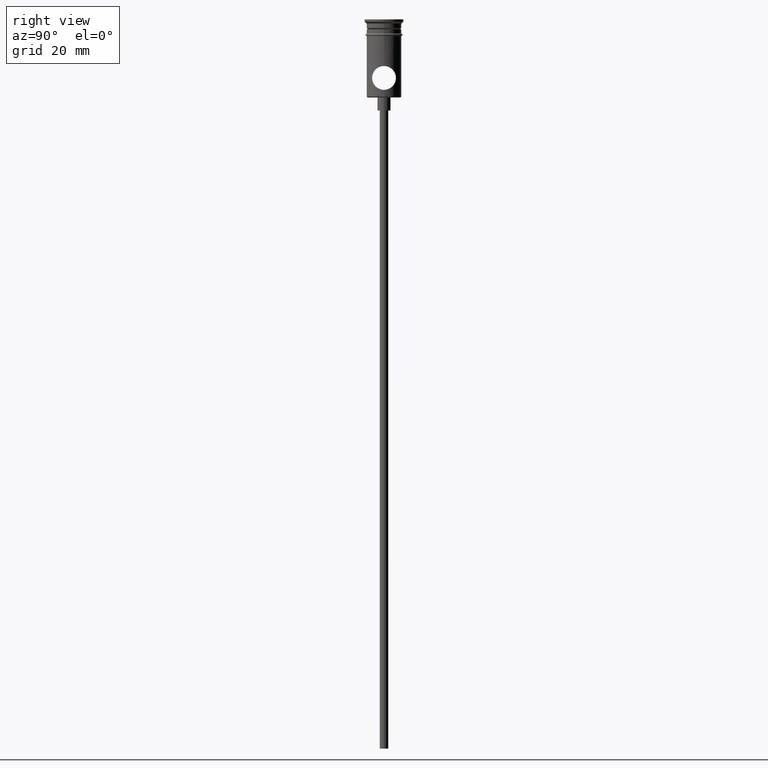
[diagram: clean part render]
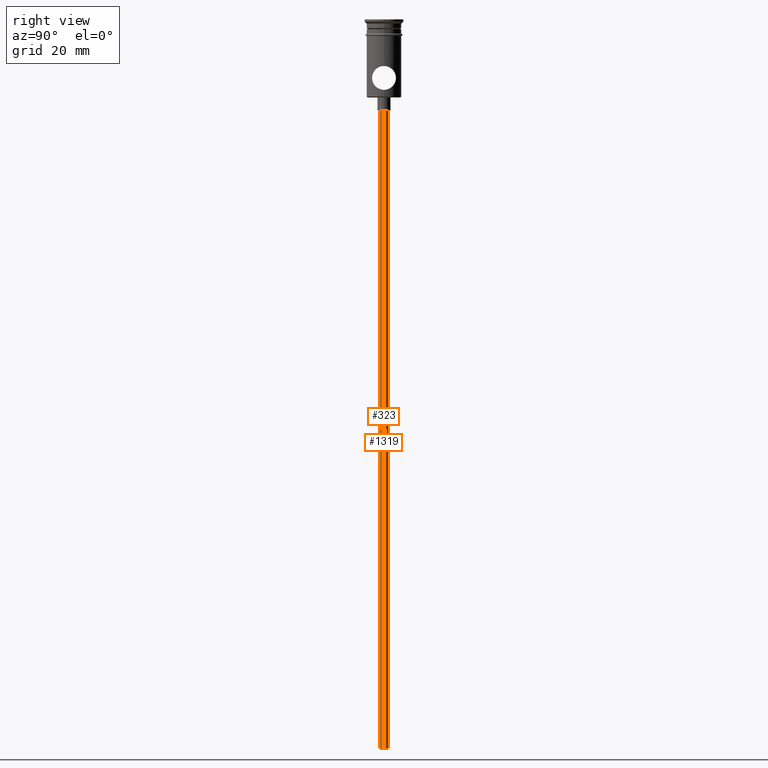
[diagram: same view with one multi-face feature highlighted, each face labeled with its STEP entity id]
A machine part, right view. The highlighted faces form ONE feature: a constant-radius fillet chain: 2 tangent blend faces with common blend radius 1 mm. The faces share edges in the B-rep.
Their STEP definitions:
[1] entity #323 (Cylinder):
#63 = VERTEX_POINT ( 'NONE', #267 ) ;
#65 = EDGE_CURVE ( 'NONE', #1371, #948, #485, .T. ) ;
#118 = EDGE_CURVE ( 'NONE', #948, #1302, #680, .T. ) ;
#228 = VECTOR ( 'NONE', #1313, 1000.000000000000000 ) ;
#234 = DIRECTION ( 'NONE',  ( 0.000000000000000000, 0.000000000000000000, -1.000000000000000000 ) ) ;
#255 = CYLINDRICAL_SURFACE ( 'NONE', #990, 0.9999999999999997780 ) ;
#267 = CARTESIAN_POINT ( 'NONE',  ( -0.9999999999999997780, 1.224646799147352961E-16, -167.9999999999999716 ) ) ;
#323 = ADVANCED_FACE ( 'NONE', ( #696 ), #255, .T. ) ;
#324 = DIRECTION ( 'NONE',  ( -0.000000000000000000, -0.000000000000000000, 1.000000000000000000 ) ) ;
#331 = LINE ( 'NONE', #1070, #340 ) ;
#340 = VECTOR ( 'NONE', #324, 1000.000000000000000 ) ;
#376 = CARTESIAN_POINT ( 'NONE',  ( -0.9999999999999997780, 1.224646799147352961E-16, -20.99999999999999645 ) ) ;
#400 = AXIS2_PLACEMENT_3D ( 'NONE', #1204, #234, #1291 ) ;
#420 = ORIENTED_EDGE ( 'NONE', *, *, #65, .T. ) ;
#460 = CARTESIAN_POINT ( 'NONE',  ( 0.000000000000000000, 0.000000000000000000, -167.9999999999999716 ) ) ;
#481 = ORIENTED_EDGE ( 'NONE', *, *, #118, .T. ) ;
#485 = LINE ( 'NONE', #1137, #228 ) ;
#573 = ORIENTED_EDGE ( 'NONE', *, *, #983, .F. ) ;
#589 = CIRCLE ( 'NONE', #400, 0.9999999999999997780 ) ;
#680 = CIRCLE ( 'NONE', #828, 0.9999999999999997780 ) ;
#696 = FACE_OUTER_BOUND ( 'NONE', #732, .T. ) ;
#705 = CARTESIAN_POINT ( 'NONE',  ( 0.9999999999999997780, 0.000000000000000000, -20.99999999999999645 ) ) ;
#732 = EDGE_LOOP ( 'NONE', ( #573, #1216, #420, #481 ) ) ;
#733 = CARTESIAN_POINT ( 'NONE',  ( 0.000000000000000000, 0.000000000000000000, -20.99999999999999645 ) ) ;
#818 = DIRECTION ( 'NONE',  ( 1.000000000000000000, 0.000000000000000000, 0.000000000000000000 ) ) ;
#828 = AXIS2_PLACEMENT_3D ( 'NONE', #733, #847, #1164 ) ;
#847 = DIRECTION ( 'NONE',  ( 0.000000000000000000, 0.000000000000000000, -1.000000000000000000 ) ) ;
#895 = CARTESIAN_POINT ( 'NONE',  ( 0.9999999999999997780, 0.000000000000000000, -167.9999999999999716 ) ) ;
#948 = VERTEX_POINT ( 'NONE', #705 ) ;
#983 = EDGE_CURVE ( 'NONE', #63, #1302, #331, .T. ) ;
#990 = AXIS2_PLACEMENT_3D ( 'NONE', #460, #1239, #818 ) ;
#1018 = EDGE_CURVE ( 'NONE', #1371, #63, #589, .T. ) ;
#1070 = CARTESIAN_POINT ( 'NONE',  ( -0.9999999999999997780, 1.224646799147352961E-16, -167.9999999999999716 ) ) ;
#1137 = CARTESIAN_POINT ( 'NONE',  ( 0.9999999999999997780, 0.000000000000000000, -167.9999999999999716 ) ) ;
#1164 = DIRECTION ( 'NONE',  ( -1.000000000000000000, 0.000000000000000000, 0.000000000000000000 ) ) ;
#1204 = CARTESIAN_POINT ( 'NONE',  ( 0.000000000000000000, 0.000000000000000000, -167.9999999999999716 ) ) ;
#1216 = ORIENTED_EDGE ( 'NONE', *, *, #1018, .F. ) ;
#1239 = DIRECTION ( 'NONE',  ( -0.000000000000000000, -0.000000000000000000, 1.000000000000000000 ) ) ;
#1291 = DIRECTION ( 'NONE',  ( -1.000000000000000000, 0.000000000000000000, 0.000000000000000000 ) ) ;
#1302 = VERTEX_POINT ( 'NONE', #376 ) ;
#1313 = DIRECTION ( 'NONE',  ( -0.000000000000000000, -0.000000000000000000, 1.000000000000000000 ) ) ;
#1371 = VERTEX_POINT ( 'NONE', #895 ) ;
[2] entity #1319 (Cylinder):
#63 = VERTEX_POINT ( 'NONE', #267 ) ;
#65 = EDGE_CURVE ( 'NONE', #1371, #948, #485, .T. ) ;
#94 = ORIENTED_EDGE ( 'NONE', *, *, #983, .T. ) ;
#228 = VECTOR ( 'NONE', #1313, 1000.000000000000000 ) ;
#241 = DIRECTION ( 'NONE',  ( -0.000000000000000000, -0.000000000000000000, 1.000000000000000000 ) ) ;
#267 = CARTESIAN_POINT ( 'NONE',  ( -0.9999999999999997780, 1.224646799147352961E-16, -167.9999999999999716 ) ) ;
#275 = CIRCLE ( 'NONE', #1056, 0.9999999999999997780 ) ;
#307 = DIRECTION ( 'NONE',  ( -1.000000000000000000, 0.000000000000000000, 0.000000000000000000 ) ) ;
#324 = DIRECTION ( 'NONE',  ( -0.000000000000000000, -0.000000000000000000, 1.000000000000000000 ) ) ;
#331 = LINE ( 'NONE', #1070, #340 ) ;
#340 = VECTOR ( 'NONE', #324, 1000.000000000000000 ) ;
#376 = CARTESIAN_POINT ( 'NONE',  ( -0.9999999999999997780, 1.224646799147352961E-16, -20.99999999999999645 ) ) ;
#389 = CARTESIAN_POINT ( 'NONE',  ( 0.000000000000000000, 0.000000000000000000, -20.99999999999999645 ) ) ;
#485 = LINE ( 'NONE', #1137, #228 ) ;
#558 = DIRECTION ( 'NONE',  ( 1.000000000000000000, 0.000000000000000000, 0.000000000000000000 ) ) ;
#615 = ORIENTED_EDGE ( 'NONE', *, *, #659, .T. ) ;
#659 = EDGE_CURVE ( 'NONE', #1302, #948, #275, .T. ) ;
#663 = ORIENTED_EDGE ( 'NONE', *, *, #674, .F. ) ;
#674 = EDGE_CURVE ( 'NONE', #63, #1371, #1280, .T. ) ;
#705 = CARTESIAN_POINT ( 'NONE',  ( 0.9999999999999997780, 0.000000000000000000, -20.99999999999999645 ) ) ;
#716 = DIRECTION ( 'NONE',  ( 0.000000000000000000, 0.000000000000000000, -1.000000000000000000 ) ) ;
#735 = DIRECTION ( 'NONE',  ( 0.000000000000000000, 0.000000000000000000, -1.000000000000000000 ) ) ;
#850 = CARTESIAN_POINT ( 'NONE',  ( 0.000000000000000000, 0.000000000000000000, -167.9999999999999716 ) ) ;
#864 = CYLINDRICAL_SURFACE ( 'NONE', #1173, 0.9999999999999997780 ) ;
#895 = CARTESIAN_POINT ( 'NONE',  ( 0.9999999999999997780, 0.000000000000000000, -167.9999999999999716 ) ) ;
#910 = AXIS2_PLACEMENT_3D ( 'NONE', #850, #735, #1036 ) ;
#948 = VERTEX_POINT ( 'NONE', #705 ) ;
#983 = EDGE_CURVE ( 'NONE', #63, #1302, #331, .T. ) ;
#1036 = DIRECTION ( 'NONE',  ( -1.000000000000000000, 0.000000000000000000, 0.000000000000000000 ) ) ;
#1056 = AXIS2_PLACEMENT_3D ( 'NONE', #389, #716, #307 ) ;
#1070 = CARTESIAN_POINT ( 'NONE',  ( -0.9999999999999997780, 1.224646799147352961E-16, -167.9999999999999716 ) ) ;
#1088 = CARTESIAN_POINT ( 'NONE',  ( 0.000000000000000000, 0.000000000000000000, -167.9999999999999716 ) ) ;
#1137 = CARTESIAN_POINT ( 'NONE',  ( 0.9999999999999997780, 0.000000000000000000, -167.9999999999999716 ) ) ;
#1173 = AXIS2_PLACEMENT_3D ( 'NONE', #1088, #241, #558 ) ;
#1202 = EDGE_LOOP ( 'NONE', ( #663, #94, #615, #1292 ) ) ;
#1280 = CIRCLE ( 'NONE', #910, 0.9999999999999997780 ) ;
#1292 = ORIENTED_EDGE ( 'NONE', *, *, #65, .F. ) ;
#1302 = VERTEX_POINT ( 'NONE', #376 ) ;
#1313 = DIRECTION ( 'NONE',  ( -0.000000000000000000, -0.000000000000000000, 1.000000000000000000 ) ) ;
#1319 = ADVANCED_FACE ( 'NONE', ( #1320 ), #864, .T. ) ;
#1320 = FACE_OUTER_BOUND ( 'NONE', #1202, .T. ) ;
#1371 = VERTEX_POINT ( 'NONE', #895 ) ;